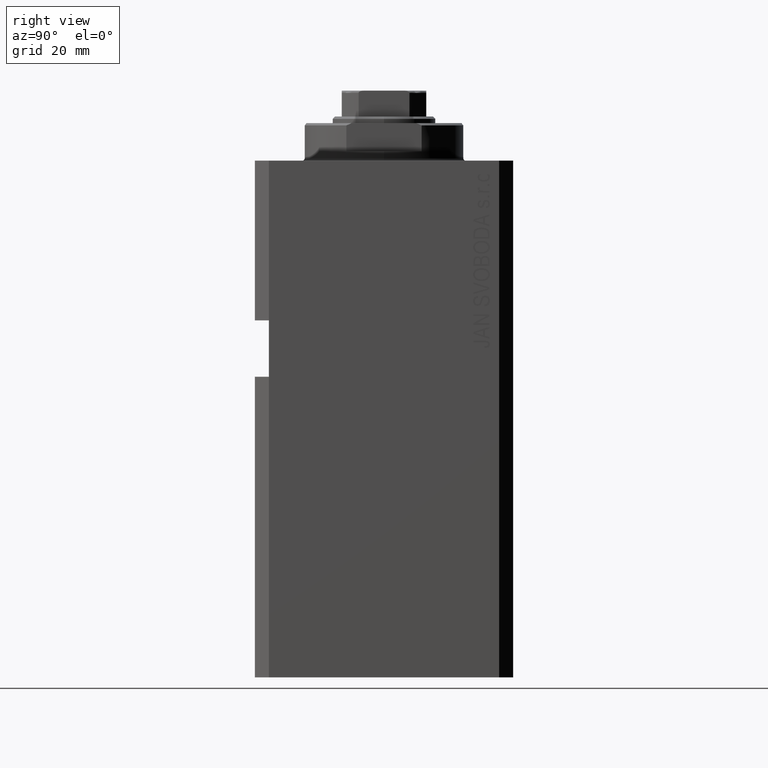
[diagram: clean part render]
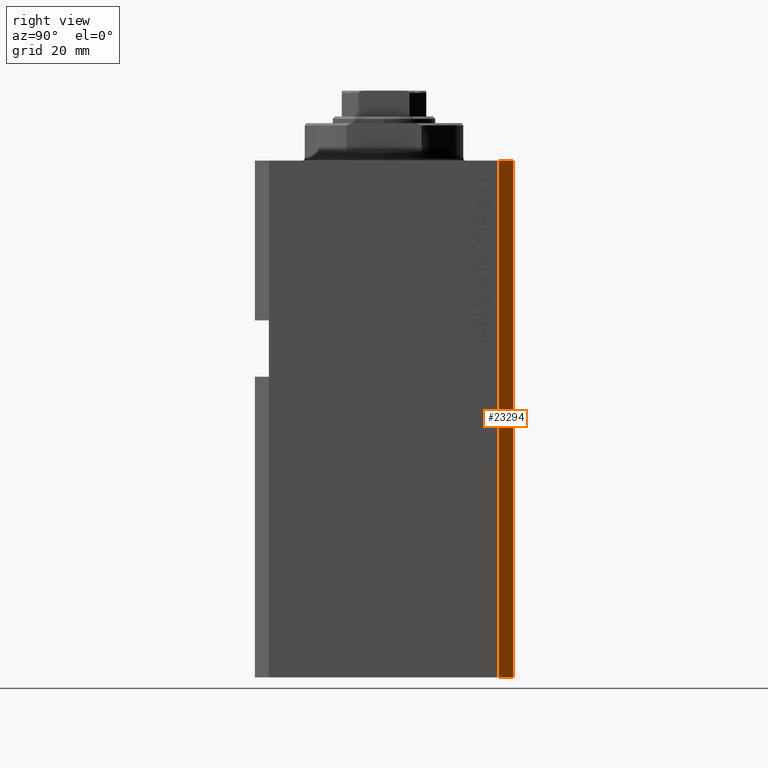
[diagram: same view with one face highlighted and labeled with its STEP entity id]
A machine part, right view. The second image highlights one B-rep face of the part: STEP entity #23294.
In plain terms, the highlighted planar face has unit normal (0.7071, 0.7071, 0).
Its self-contained STEP definition (entity closure, byte-faithful):
#2577 = CARTESIAN_POINT ( 'NONE',  ( 34.50000000000056843, 27.50000000000000000, -110.0000000000000000 ) ) ;
#3761 = CARTESIAN_POINT ( 'NONE',  ( 34.50000000000056843, 27.50000000000000000, -110.0000000000000000 ) ) ;
#4054 = ORIENTED_EDGE ( 'NONE', *, *, #41407, .T. ) ;
#6365 = EDGE_CURVE ( 'NONE', #42876, #30993, #7575, .T. ) ;
#7575 = LINE ( 'NONE', #17157, #23913 ) ;
#8428 = ORIENTED_EDGE ( 'NONE', *, *, #32401, .F. ) ;
#9670 = VERTEX_POINT ( 'NONE', #19404 ) ;
#12108 = VECTOR ( 'NONE', #35181, 1000.000000000000000 ) ;
#14843 = ORIENTED_EDGE ( 'NONE', *, *, #6365, .T. ) ;
#15068 = CARTESIAN_POINT ( 'NONE',  ( 37.50000000000051870, 24.49999999999995381, -110.0000000000000000 ) ) ;
#17157 = CARTESIAN_POINT ( 'NONE',  ( 37.50000000000051870, 24.49999999999995381, -110.0000000000000000 ) ) ;
#17227 = VERTEX_POINT ( 'NONE', #19389 ) ;
#17309 = DIRECTION ( 'NONE',  ( -0.7071067811865356934, 0.7071067811865594521, 0.000000000000000000 ) ) ;
#17424 = ORIENTED_EDGE ( 'NONE', *, *, #27156, .F. ) ;
#19389 = CARTESIAN_POINT ( 'NONE',  ( 37.50000000000051870, 24.49999999999995381, 0.000000000000000000 ) ) ;
#19404 = CARTESIAN_POINT ( 'NONE',  ( 34.50000000000056843, 27.50000000000000000, 0.000000000000000000 ) ) ;
#21546 = PLANE ( 'NONE',  #32056 ) ;
#21964 = FACE_OUTER_BOUND ( 'NONE', #36559, .T. ) ;
#23294 = ADVANCED_FACE ( 'NONE', ( #21964 ), #21546, .T. ) ;
#23913 = VECTOR ( 'NONE', #34079, 1000.000000000000114 ) ;
#24202 = CARTESIAN_POINT ( 'NONE',  ( 37.50000000000051870, 24.49999999999995381, 0.000000000000000000 ) ) ;
#25771 = DIRECTION ( 'NONE',  ( 0.7071067811865594521, 0.7071067811865356934, -0.000000000000000000 ) ) ;
#25995 = DIRECTION ( 'NONE',  ( -0.7071067811865356934, 0.7071067811865594521, 0.000000000000000000 ) ) ;
#26960 = DIRECTION ( 'NONE',  ( 0.000000000000000000, 0.000000000000000000, 1.000000000000000000 ) ) ;
#27156 = EDGE_CURVE ( 'NONE', #17227, #9670, #30675, .T. ) ;
#27852 = LINE ( 'NONE', #38512, #12108 ) ;
#30443 = CARTESIAN_POINT ( 'NONE',  ( 37.50000000000051870, 24.49999999999995381, -110.0000000000000000 ) ) ;
#30649 = VECTOR ( 'NONE', #17309, 1000.000000000000114 ) ;
#30675 = LINE ( 'NONE', #24202, #30649 ) ;
#30993 = VERTEX_POINT ( 'NONE', #2577 ) ;
#32056 = AXIS2_PLACEMENT_3D ( 'NONE', #15068, #25771, #25995 ) ;
#32401 = EDGE_CURVE ( 'NONE', #42876, #17227, #27852, .T. ) ;
#32898 = VECTOR ( 'NONE', #26960, 1000.000000000000000 ) ;
#34079 = DIRECTION ( 'NONE',  ( -0.7071067811865356934, 0.7071067811865594521, 0.000000000000000000 ) ) ;
#35181 = DIRECTION ( 'NONE',  ( 0.000000000000000000, 0.000000000000000000, 1.000000000000000000 ) ) ;
#36559 = EDGE_LOOP ( 'NONE', ( #17424, #8428, #14843, #4054 ) ) ;
#37195 = LINE ( 'NONE', #3761, #32898 ) ;
#38512 = CARTESIAN_POINT ( 'NONE',  ( 37.50000000000051870, 24.49999999999995381, -110.0000000000000000 ) ) ;
#41407 = EDGE_CURVE ( 'NONE', #30993, #9670, #37195, .T. ) ;
#42876 = VERTEX_POINT ( 'NONE', #30443 ) ;